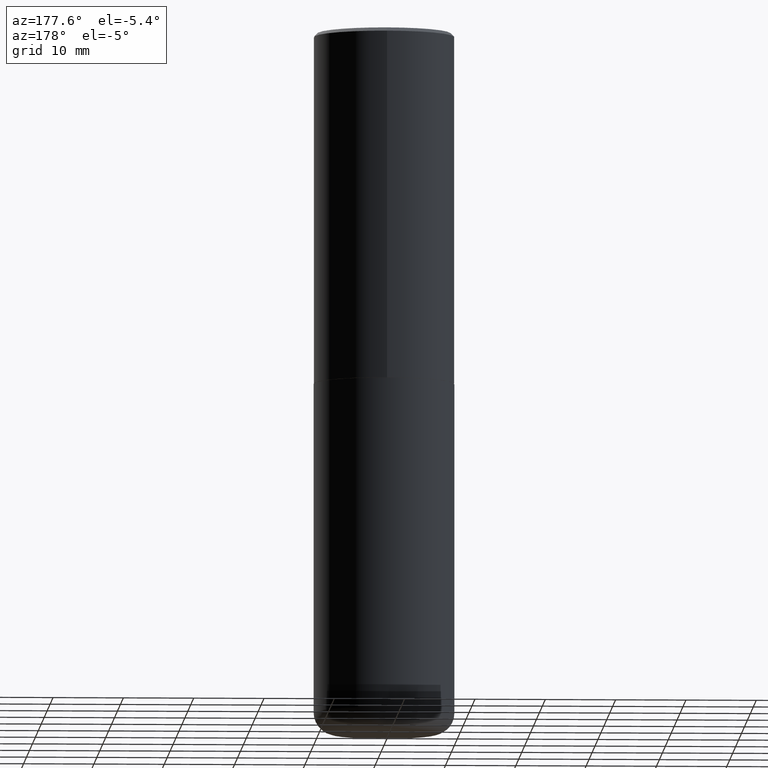
[diagram: clean part render]
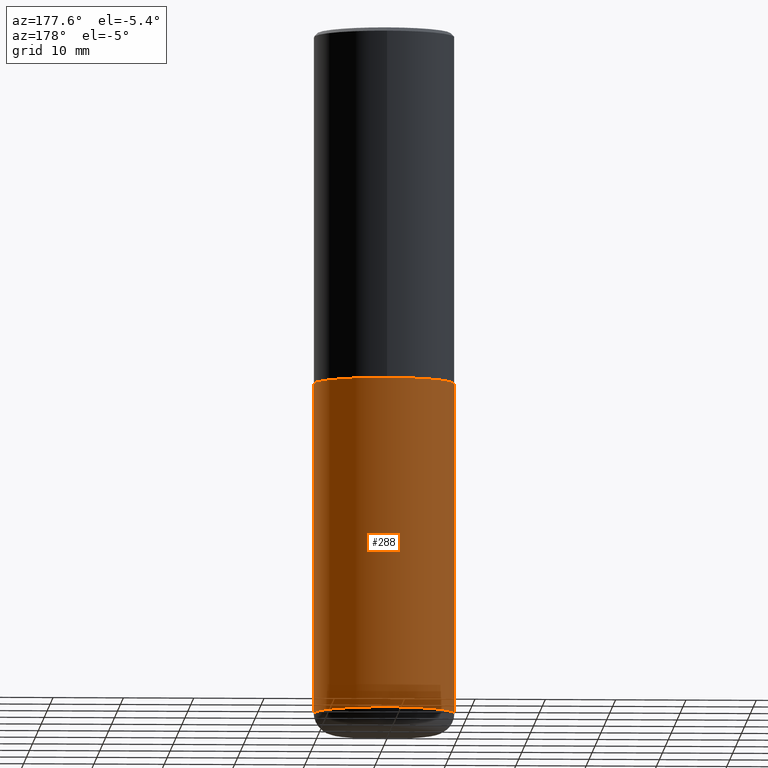
[diagram: same view with one face highlighted and labeled with its STEP entity id]
A machine part, auxiliary view. The second image highlights one B-rep face of the part: STEP entity #288.
In plain terms, the highlighted cylindrical surface (partial cylindrical patch) has radius 10 mm, axis along (-0, 0, 1).
Its self-contained STEP definition (entity closure, byte-faithful):
#2 = LINE ( 'NONE', #202, #216 ) ;
#7 = EDGE_CURVE ( 'NONE', #312, #61, #301, .T. ) ;
#24 = AXIS2_PLACEMENT_3D ( 'NONE', #158, #258, #222 ) ;
#26 = EDGE_CURVE ( 'NONE', #348, #312, #384, .T. ) ;
#57 = CYLINDRICAL_SURFACE ( 'NONE', #294, 0.3937000000000000499 ) ;
#61 = VERTEX_POINT ( 'NONE', #228 ) ;
#91 = ORIENTED_EDGE ( 'NONE', *, *, #322, .T. ) ;
#97 = EDGE_CURVE ( 'NONE', #348, #309, #209, .T. ) ;
#98 = DIRECTION ( 'NONE',  ( -2.445468806185136877E-29, 3.491481338843145188E-15, 1.000000000000000000 ) ) ;
#101 = DIRECTION ( 'NONE',  ( 1.000000000000000000, -6.982962677686265922E-15, 4.876176775795935793E-29 ) ) ;
#105 = CARTESIAN_POINT ( 'NONE',  ( 0.3937000000000000499, -1.608281049111317408E-14, -3.818900000000000183 ) ) ;
#135 = VECTOR ( 'NONE', #98, 39.37007874015748143 ) ;
#158 = CARTESIAN_POINT ( 'NONE',  ( 9.339000823940418668E-29, -1.333361808490808928E-14, -3.818900000000000183 ) ) ;
#169 = CARTESIAN_POINT ( 'NONE',  ( -0.3937000000000000499, -1.053621133422057529E-14, -3.818900000000000183 ) ) ;
#195 = CARTESIAN_POINT ( 'NONE',  ( 0.3937000000000000499, -9.622173421717814924E-15, -1.968500000000000139 ) ) ;
#202 = CARTESIAN_POINT ( 'NONE',  ( -0.3937000000000000499, 2.797406750687514786E-15, -1.936584745033356735E-29 ) ) ;
#209 = CIRCLE ( 'NONE', #24, 0.3937000000000000499 ) ;
#211 = ORIENTED_EDGE ( 'NONE', *, *, #7, .F. ) ;
#216 = VECTOR ( 'NONE', #296, 39.37007874015748143 ) ;
#219 = FACE_OUTER_BOUND ( 'NONE', #401, .T. ) ;
#222 = DIRECTION ( 'NONE',  ( 1.000000000000000000, -6.982962677686267499E-15, 0.000000000000000000 ) ) ;
#226 = CARTESIAN_POINT ( 'NONE',  ( 0.000000000000000000, 0.000000000000000000, 0.000000000000000000 ) ) ;
#228 = CARTESIAN_POINT ( 'NONE',  ( -0.3937000000000000499, -7.305892799522895709E-15, -1.968500000000000139 ) ) ;
#258 = DIRECTION ( 'NONE',  ( -2.445468806185136597E-29, 3.491481338843145583E-15, 1.000000000000000000 ) ) ;
#261 = ORIENTED_EDGE ( 'NONE', *, *, #26, .F. ) ;
#288 = ADVANCED_FACE ( 'NONE', ( #219 ), #57, .T. ) ;
#294 = AXIS2_PLACEMENT_3D ( 'NONE', #226, #327, #101 ) ;
#296 = DIRECTION ( 'NONE',  ( -2.445468806185136877E-29, 3.491481338843145188E-15, 1.000000000000000000 ) ) ;
#301 = CIRCLE ( 'NONE', #404, 0.3937000000000000499 ) ;
#309 = VERTEX_POINT ( 'NONE', #169 ) ;
#312 = VERTEX_POINT ( 'NONE', #195 ) ;
#314 = CARTESIAN_POINT ( 'NONE',  ( 0.3937000000000000499, -2.749192406205083217E-15, 1.919750796630860172E-29 ) ) ;
#322 = EDGE_CURVE ( 'NONE', #309, #61, #2, .T. ) ;
#327 = DIRECTION ( 'NONE',  ( -2.445468806185136597E-29, 3.491481338843145583E-15, 1.000000000000000000 ) ) ;
#344 = CARTESIAN_POINT ( 'NONE',  ( 4.813905344975441835E-29, -6.872981015512731707E-15, -1.968500000000000139 ) ) ;
#348 = VERTEX_POINT ( 'NONE', #105 ) ;
#351 = DIRECTION ( 'NONE',  ( -2.445468806185136597E-29, 3.491481338843145583E-15, 1.000000000000000000 ) ) ;
#384 = LINE ( 'NONE', #314, #135 ) ;
#401 = EDGE_LOOP ( 'NONE', ( #414, #91, #211, #261 ) ) ;
#402 = DIRECTION ( 'NONE',  ( 1.000000000000000000, -6.982962677686265133E-15, 0.000000000000000000 ) ) ;
#404 = AXIS2_PLACEMENT_3D ( 'NONE', #344, #351, #402 ) ;
#414 = ORIENTED_EDGE ( 'NONE', *, *, #97, .T. ) ;